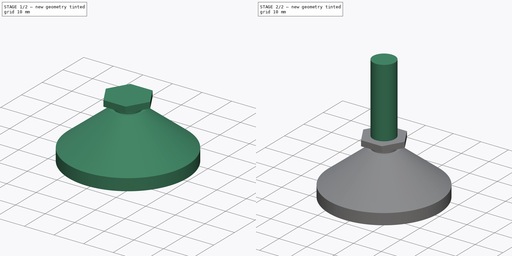
[diagram: build sequence overview — one tinted view per stage of 2, left to right]
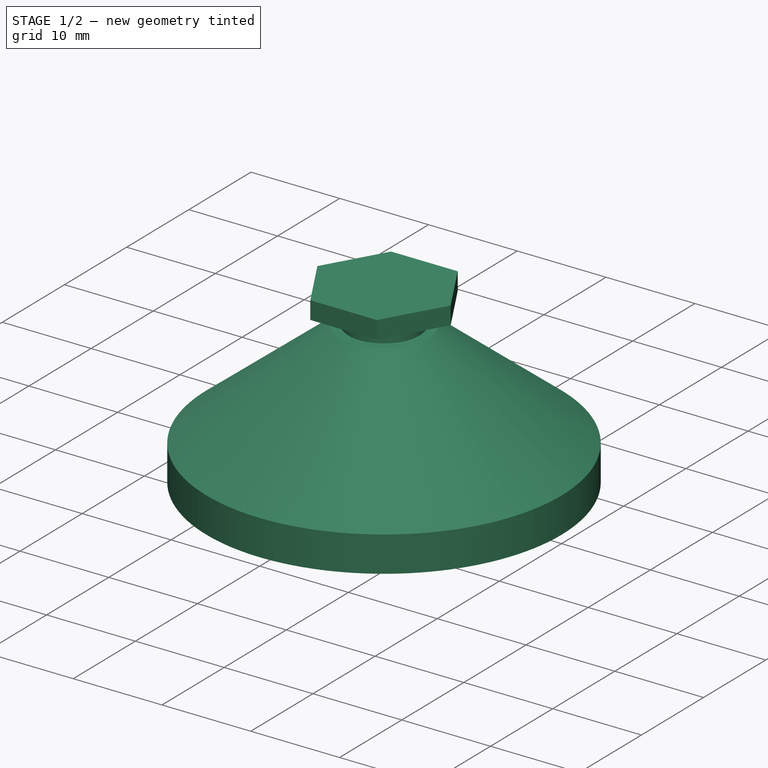
[diagram: stage 1 of 2 — iso view after this stage's code; geometry added in this stage tinted green]
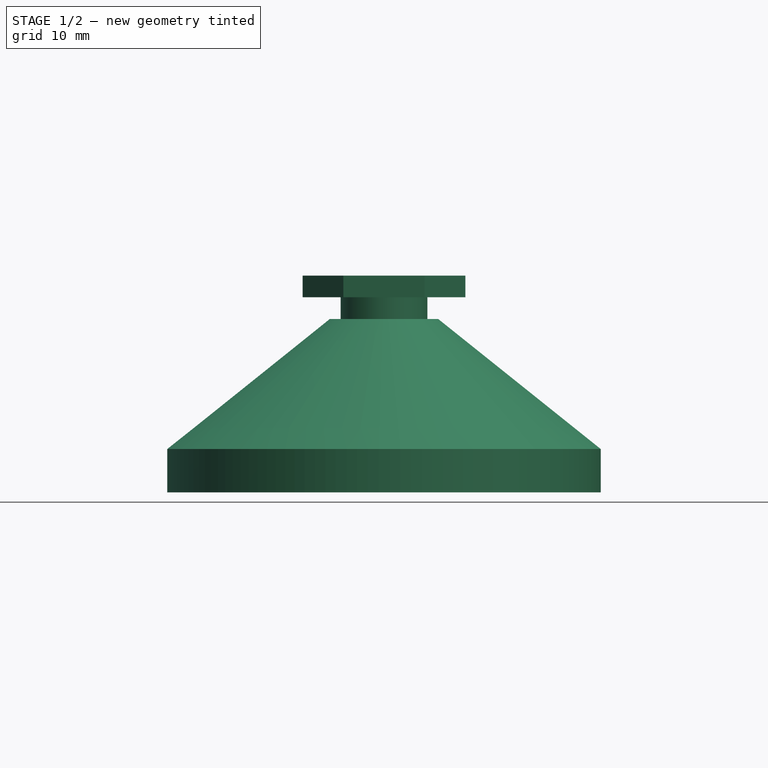
[diagram: stage 1 of 2 — front view after this stage's code; geometry added in this stage tinted green]
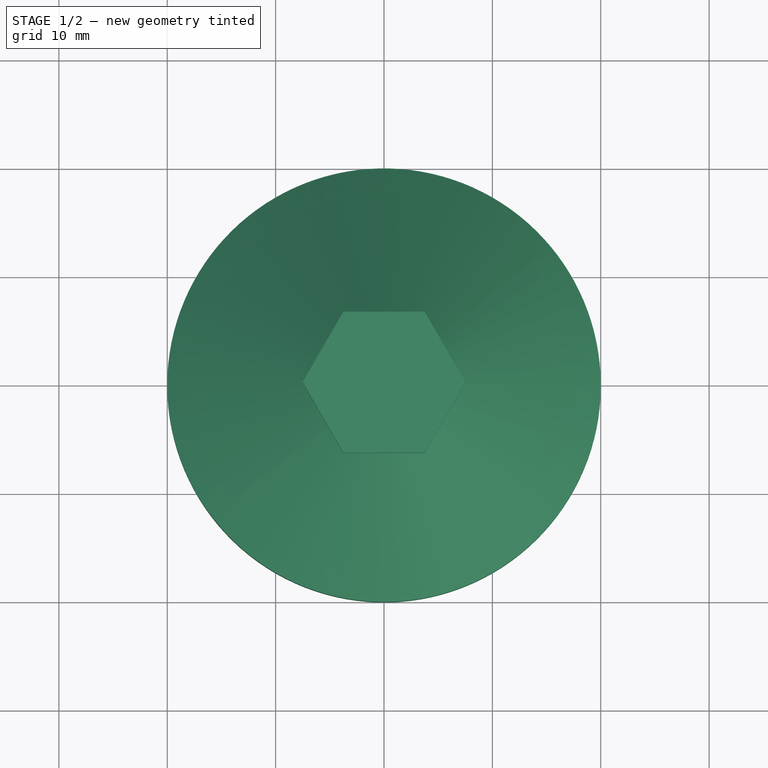
[diagram: stage 1 of 2 — top view after this stage's code; geometry added in this stage tinted green]
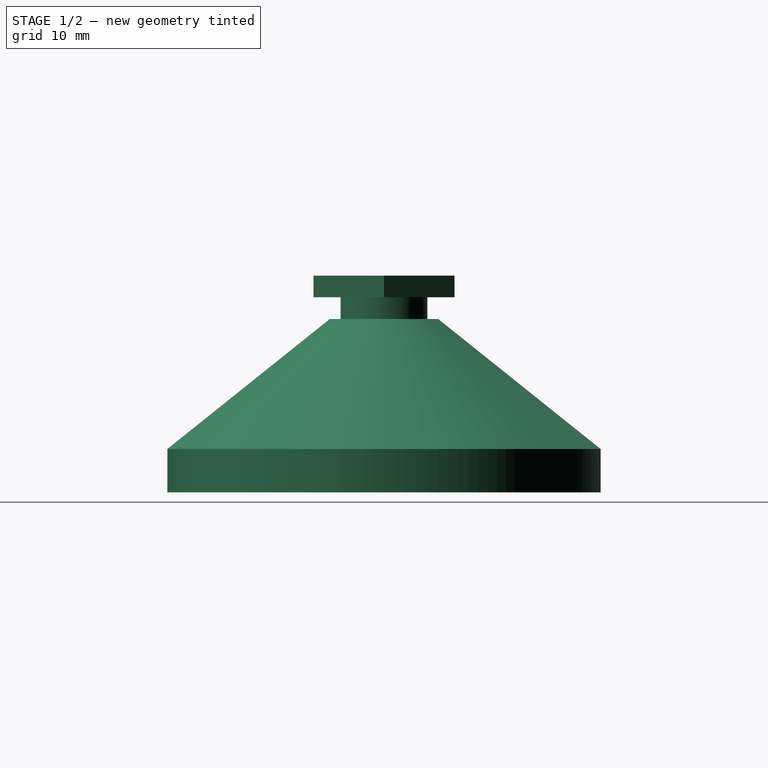
[diagram: stage 1 of 2 — right view after this stage's code; geometry added in this stage tinted green]
FCSTD DOCUMENT  (FreeCAD 1.0R39319 (Git))
Label: WAMF040
License: Creative Commons Attribution 4.0
LicenseURL: https://creativecommons.org/licenses/by/4.0/
objects: Sketcher::SketchObject×3, PartDesign::Pad×2, PartDesign::Revolution×1, PartDesign::Plane×1, PartDesign::Body×1
note: 17 computed .brp shape members not serialized (recipe doc carries the construction recipe); baked Part::Feature solids carry a one-line shape summary decoded from their .brp

FEATURE [Sketcher::SketchObject] Sketch
  ArcFitTolerance = 1e-06
  AttachmentSupport = -> [XZ_Plane]
  FullyConstrained = true
  MakeInternals = false
  MapMode = 5
  Placement = pos=(0,0,0) rot=(1,0,0;1.5708rad)
  sketch-geometry (7):
    g0: LineSegment StartX=0 StartY=0 StartZ=0 EndX=20 EndY=0 EndZ=0
    g1: LineSegment StartX=20 StartY=0 StartZ=0 EndX=20 EndY=4 EndZ=0
    g2: LineSegment StartX=20 StartY=4 StartZ=0 EndX=5 EndY=16 EndZ=0
    g3: LineSegment StartX=0 StartY=18 StartZ=0 EndX=0 EndY=0 EndZ=0
    g4: LineSegment StartX=5 StartY=16 StartZ=0 EndX=4 EndY=16 EndZ=0
    g5: LineSegment StartX=4 StartY=16 StartZ=0 EndX=4 EndY=18 EndZ=0
    g6: LineSegment StartX=4 StartY=18 StartZ=0 EndX=0 EndY=18 EndZ=0
  constraints (20):
    c: Coincident(g0,g-1)
    c: PointOnObject(g0,g-1)
    c: Coincident(g0,g1)
    c: Coincident(g3,g0)
    c: Vertical(g3)
    c: Coincident(g1,g2)
    c: Vertical(g1)
    c: DistanceX(g0,g0) = 20
    c: DistanceX(g3,g2) = 5
    c: DistanceY(g1,g1) = 4
    c: Coincident(g2,g4)
    c: Coincident(g4,g5)
    c: Vertical(g5)
    c: Coincident(g5,g6)
    c: Horizontal(g6)
    c: Coincident(g3,g6)
    c: Horizontal(g4)
    c: DistanceX(g6,g6) = 4
    c: DistanceY(g0,g3) = 18
    c: DistanceY(g5,g5) = 2
FEATURE [PartDesign::Revolution] Revolution
  Angle = 360
  Angle2 = 60
  Axis = (0,2e-16,1)
  Base = (0,0,0)
  Placement = pos=(0,0,0) rot=(1,0,0;1.5708rad)
  Profile = -> Sketch
  ReferenceAxis = -> Sketch [V_Axis]
  Reversed = true
  Suppressed = false
  Type = 0
FEATURE [PartDesign::Plane] DatumPlane
  AttachmentOffset = pos=(0,0,20) rot=(0,0,1;0rad)
  AttachmentSupport = -> [XY_Plane]
  Length = 60
  MapMode = 5
  Placement = pos=(0,0,20) rot=(0,0,1;0rad)
  ResizeMode = 0
  Width = 60
FEATURE [Sketcher::SketchObject] Sketch002
  ArcFitTolerance = 1e-06
  AttachmentSupport = -> [DatumPlane]
  FullyConstrained = true
  MakeInternals = false
  MapMode = 5
  Placement = pos=(0,0,20) rot=(0,0,1;0rad)
  sketch-geometry (7):
    g0: LineSegment StartX=-3.75278 StartY=6.5 StartZ=0 EndX=-7.50555 EndY=9e-16 EndZ=0
    g1: LineSegment StartX=-7.50555 StartY=9e-16 StartZ=0 EndX=-3.75278 EndY=-6.5 EndZ=0
    g2: LineSegment StartX=-3.75278 StartY=-6.5 StartZ=0 EndX=3.75278 EndY=-6.5 EndZ=0
    g3: LineSegment StartX=3.75278 StartY=-6.5 StartZ=0 EndX=7.50555 EndY=9e-16 EndZ=0
    g4: LineSegment StartX=7.50555 StartY=9e-16 StartZ=0 EndX=3.75278 EndY=6.5 EndZ=0
    g5: LineSegment StartX=3.75278 StartY=6.5 StartZ=0 EndX=-3.75278 EndY=6.5 EndZ=0
    g6: Circle [constr] CenterX=0 CenterY=0 CenterZ=0 NormalX=0 NormalY=0 NormalZ=1 AngleXU=0 Radius=7.50555
  constraints (16):
    c: Coincident(g0,g1)
    c: Coincident(g1,g2)
    c: Coincident(g2,g3)
    c: Coincident(g3,g4)
    c: Coincident(g4,g5)
    c: Coincident(g5,g0)
    c: Equal(g0, g1-g5) x5
    c: PointOnObject(g0,g6)
    c: PointOnObject(g1,g6)
    c: PointOnObject(g2,g6)
    c: PointOnObject(g3,g6)
    c: PointOnObject(g4,g6)
    c: PointOnObject(g5,g6)
    c: Coincident(g6,g-1)
    c: Horizontal(g5)
    c: DistanceY(g1,g0) = 13
FEATURE [PartDesign::Pad] Pad
  BaseFeature = -> Revolution
  Direction = (0,0,1)
  Length = 2
  Length2 = 10
  Placement = pos=(0,0,0) rot=(1,0,0;1.5708rad)
  Profile = -> Sketch002
  ReferenceAxis = -> Sketch002 [N_Axis]
  Reversed = true
  Suppressed = false
  Type = 0
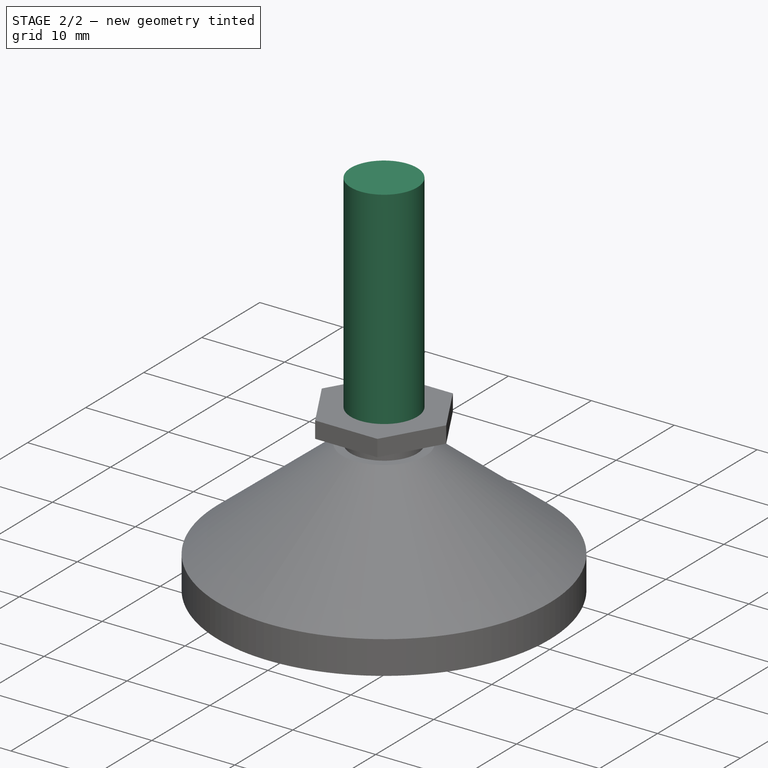
[diagram: stage 2 of 2 — iso view after this stage's code; geometry added in this stage tinted green]
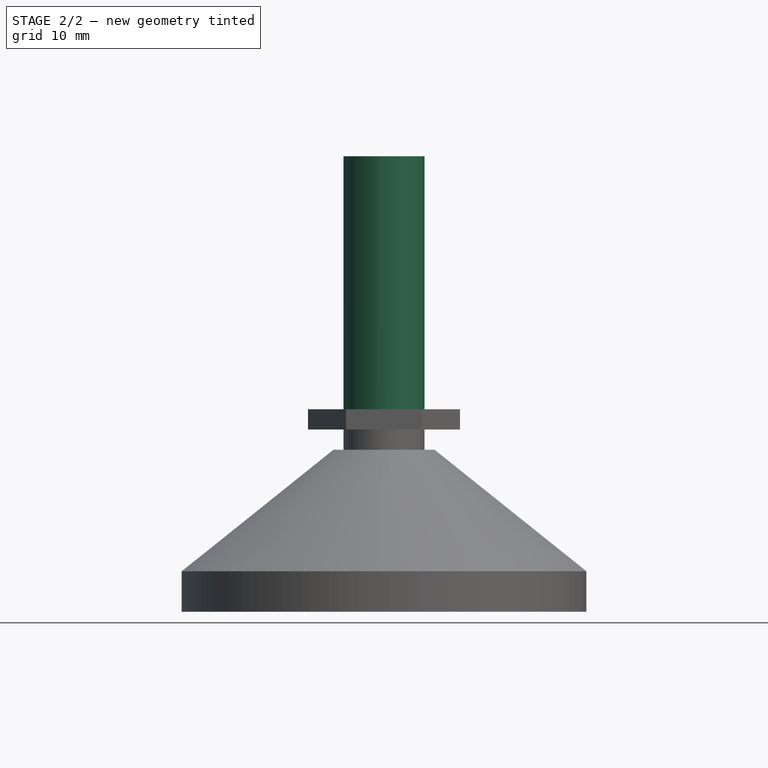
[diagram: stage 2 of 2 — front view after this stage's code; geometry added in this stage tinted green]
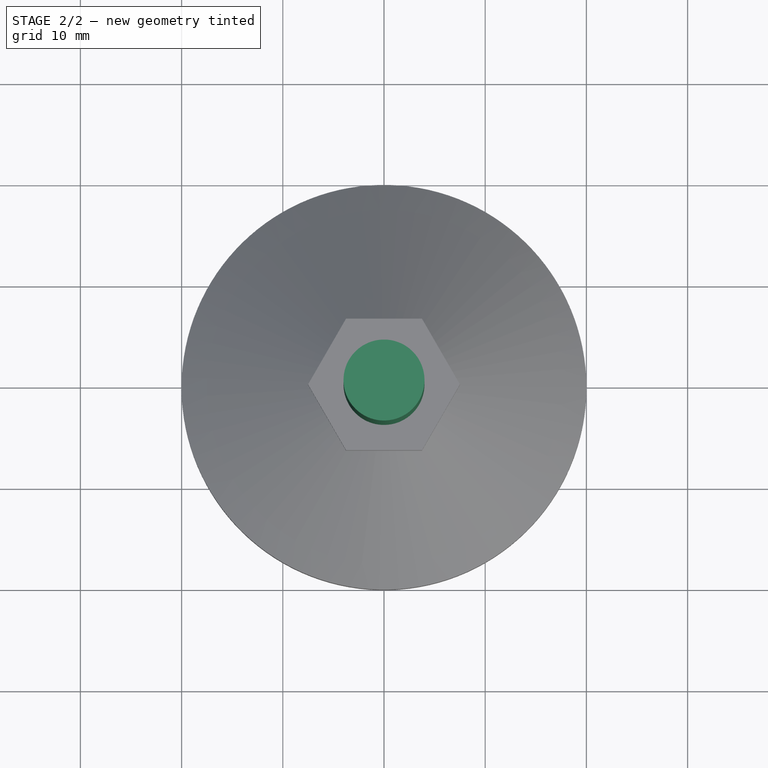
[diagram: stage 2 of 2 — top view after this stage's code; geometry added in this stage tinted green]
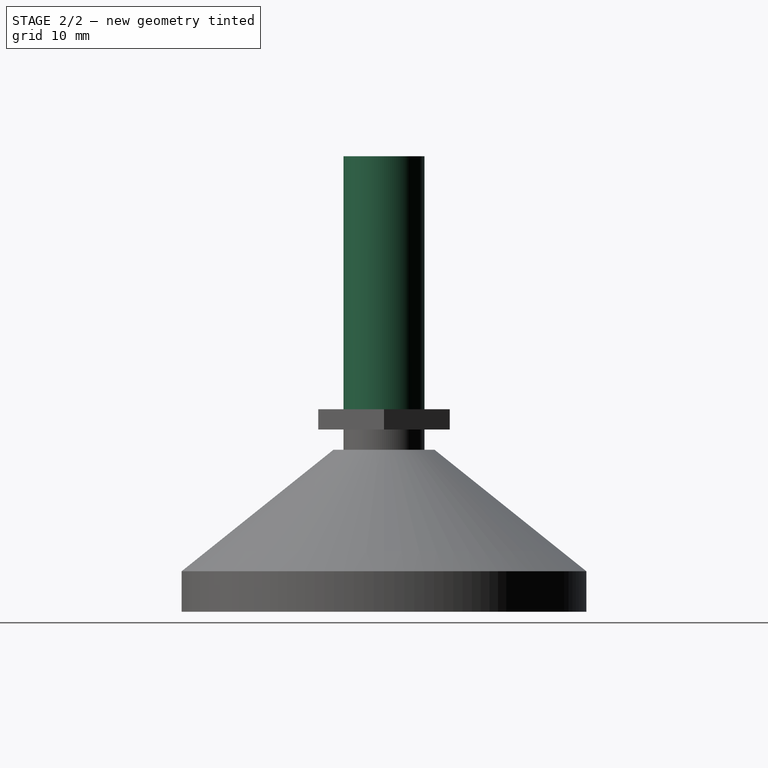
[diagram: stage 2 of 2 — right view after this stage's code; geometry added in this stage tinted green]
FEATURE [Sketcher::SketchObject] Sketch003
  ArcFitTolerance = 1e-06
  AttachmentSupport = -> [DatumPlane]
  FullyConstrained = true
  MakeInternals = false
  MapMode = 5
  Placement = pos=(0,0,20) rot=(0,0,1;0rad)
  sketch-geometry (1):
    g0: Circle CenterX=0 CenterY=0 CenterZ=0 NormalX=0 NormalY=0 NormalZ=1 AngleXU=0 Radius=4
  constraints (2):
    c: Coincident(g0,g-1)
    c: Diameter(g0) = 8
FEATURE [PartDesign::Pad] Pad001
  BaseFeature = -> Pad
  Direction = (0,0,1)
  Length = 25
  Length2 = 10
  Placement = pos=(0,0,0) rot=(1,0,0;1.5708rad)
  Profile = -> Sketch003
  ReferenceAxis = -> Sketch003 [N_Axis]
  Suppressed = false
  Type = 0
FEATURE [PartDesign::Body] Body  label="WAMF040"
  AllowCompound = false
  Group = -> [Sketch,Revolution,Sketch002,Pad,Sketch003,Pad001,DatumPlane]
  Origin = -> Origin
  Tip = -> Pad001
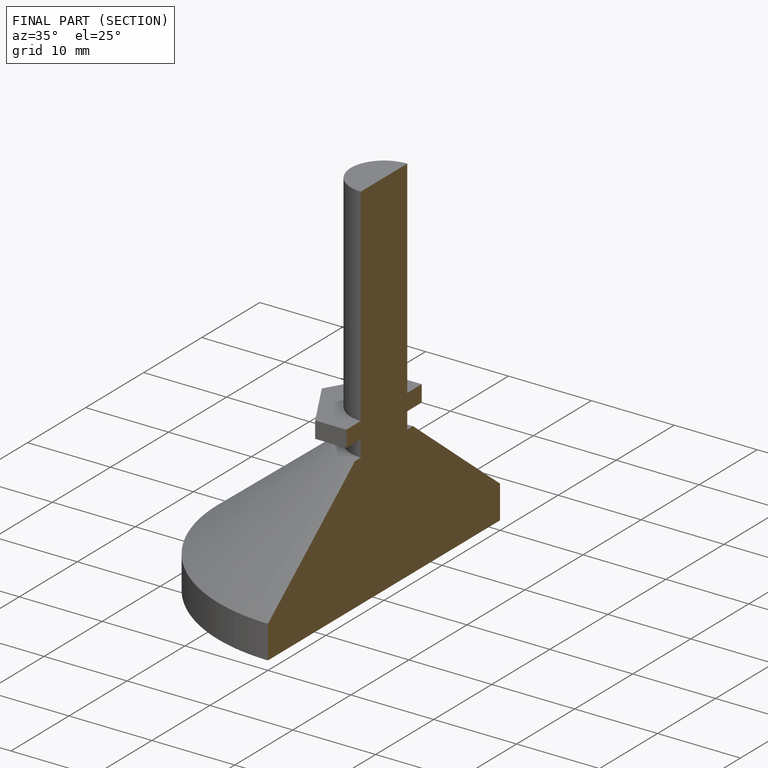
[diagram: finished part — half-section view (interior)]
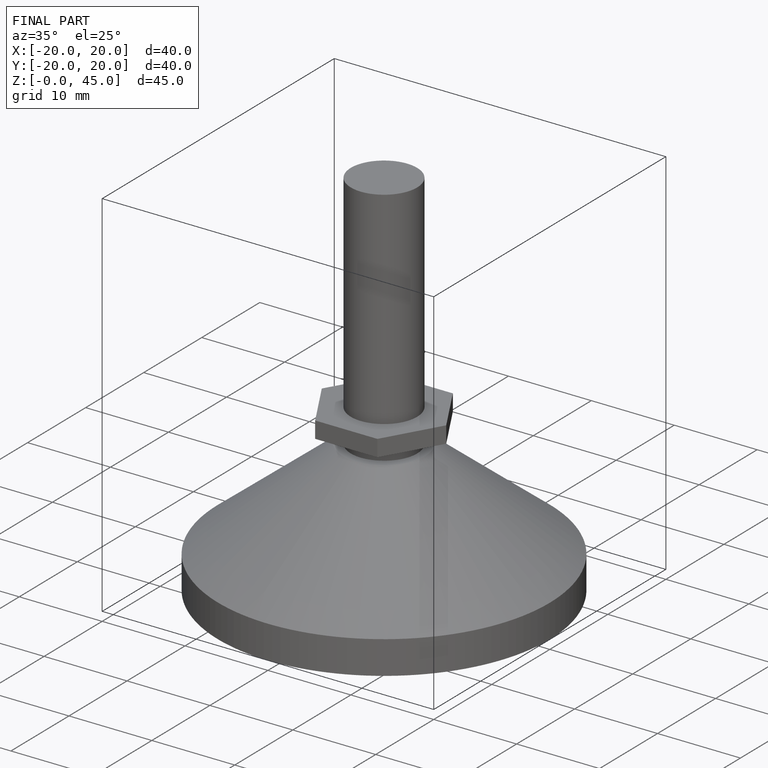
[diagram: finished part — iso view with bounding-box wireframe]
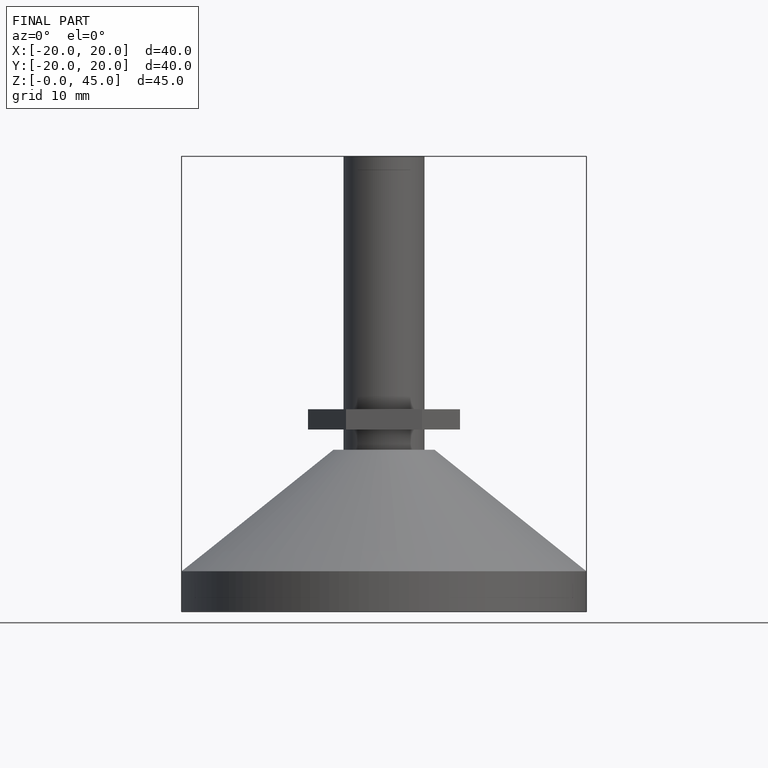
[diagram: finished part — front view with bounding-box wireframe]
